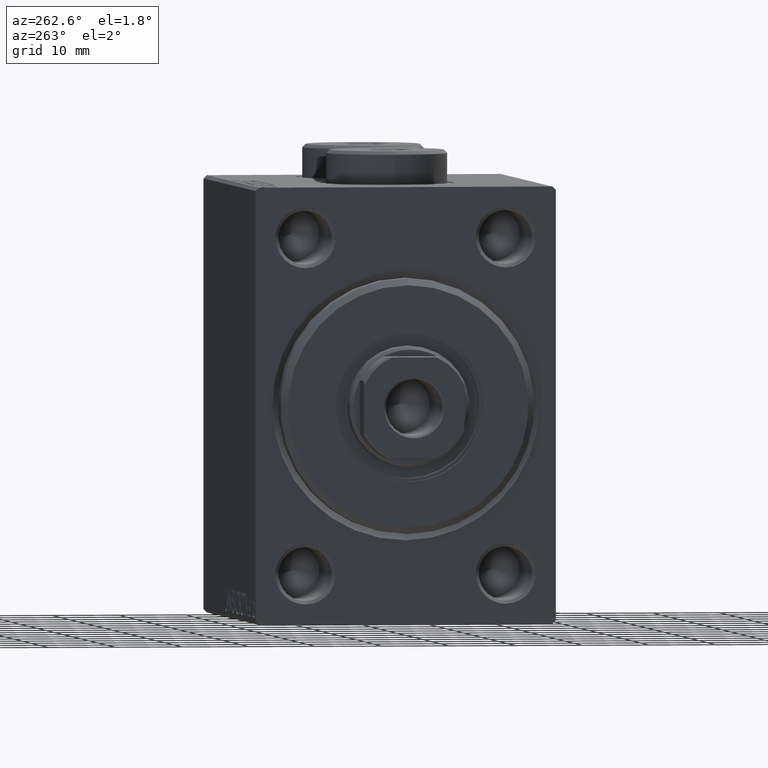
[diagram: clean part render]
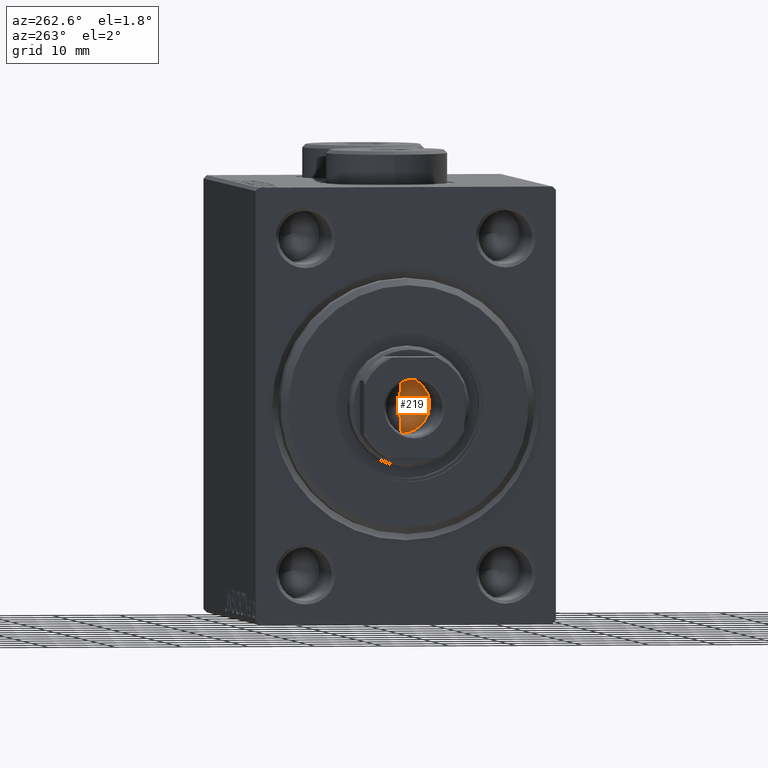
[diagram: same view with one face highlighted and labeled with its STEP entity id]
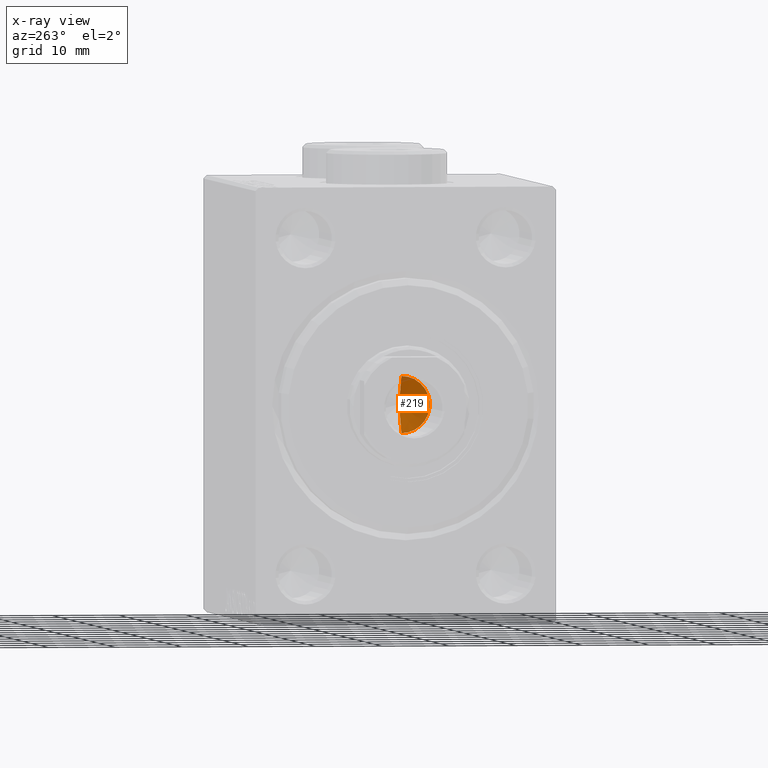
[diagram: x-ray of the same camera — body ghosted, the highlighted face saturated]
A machine part, auxiliary view. The second image highlights one B-rep face of the part: STEP entity #219.
The next image is the same camera in x-ray: the body ghosted, the highlighted face saturated — about 3% of this face is hidden behind the body in this view.
In plain terms, the highlighted conical surface has half-angle 59 deg.
Its self-contained STEP definition (entity closure, byte-faithful):
#219 = ADVANCED_FACE ( 'NONE', ( #38489 ), #5629, .F. ) ;
#960 = DIRECTION ( 'NONE',  ( 0.8571673007021114454, 0.000000000000000000, 0.5150380749100555988 ) ) ;
#2046 = ORIENTED_EDGE ( 'NONE', *, *, #44567, .T. ) ;
#2255 = ORIENTED_EDGE ( 'NONE', *, *, #3315, .F. ) ;
#3315 = EDGE_CURVE ( 'NONE', #17808, #22381, #28831, .T. ) ;
#5629 = CONICAL_SURFACE ( 'NONE', #8553, 4.249999999999996447, 1.029744258676652757 ) ;
#6282 = EDGE_CURVE ( 'NONE', #39988, #22381, #35122, .T. ) ;
#8553 = AXIS2_PLACEMENT_3D ( 'NONE', #25057, #28071, #20923 ) ;
#8614 = AXIS2_PLACEMENT_3D ( 'NONE', #42176, #9915, #21167 ) ;
#9915 = DIRECTION ( 'NONE',  ( -0.000000000000000000, -0.000000000000000000, 1.000000000000000000 ) ) ;
#17808 = VERTEX_POINT ( 'NONE', #24333 ) ;
#19335 = VECTOR ( 'NONE', #42991, 1000.000000000000000 ) ;
#20923 = DIRECTION ( 'NONE',  ( 1.000000000000000000, 0.000000000000000000, 0.000000000000000000 ) ) ;
#21167 = DIRECTION ( 'NONE',  ( 1.000000000000000000, 0.000000000000000000, 0.000000000000000000 ) ) ;
#21452 = CARTESIAN_POINT ( 'NONE',  ( 4.249999999999996447, 0.000000000000000000, 45.99999999999999289 ) ) ;
#21979 = CARTESIAN_POINT ( 'NONE',  ( -4.249999999999996447, 5.204748896376247741E-16, 45.99999999999999289 ) ) ;
#22381 = VERTEX_POINT ( 'NONE', #36303 ) ;
#24333 = CARTESIAN_POINT ( 'NONE',  ( -4.190930801282543764E-15, 0.000000000000000000, 43.44634236913285719 ) ) ;
#25057 = CARTESIAN_POINT ( 'NONE',  ( 0.000000000000000000, 0.000000000000000000, 45.99999999999999289 ) ) ;
#25654 = LINE ( 'NONE', #21979, #19335 ) ;
#28071 = DIRECTION ( 'NONE',  ( -0.000000000000000000, -0.000000000000000000, 1.000000000000000000 ) ) ;
#28831 = LINE ( 'NONE', #21452, #36541 ) ;
#32096 = ORIENTED_EDGE ( 'NONE', *, *, #6282, .T. ) ;
#34799 = EDGE_LOOP ( 'NONE', ( #2255, #2046, #32096 ) ) ;
#35122 = CIRCLE ( 'NONE', #8614, 4.249999999999996447 ) ;
#36303 = CARTESIAN_POINT ( 'NONE',  ( 4.249999999999996447, 0.000000000000000000, 45.99999999999999289 ) ) ;
#36541 = VECTOR ( 'NONE', #960, 1000.000000000000000 ) ;
#38489 = FACE_OUTER_BOUND ( 'NONE', #34799, .T. ) ;
#39988 = VERTEX_POINT ( 'NONE', #41642 ) ;
#41642 = CARTESIAN_POINT ( 'NONE',  ( -4.249999999999996447, 5.204748896376247741E-16, 45.99999999999999289 ) ) ;
#42176 = CARTESIAN_POINT ( 'NONE',  ( 0.000000000000000000, 0.000000000000000000, 45.99999999999999289 ) ) ;
#42991 = DIRECTION ( 'NONE',  ( -0.8571673007021114454, 1.049727191138617586E-16, 0.5150380749100555988 ) ) ;
#44567 = EDGE_CURVE ( 'NONE', #17808, #39988, #25654, .T. ) ;